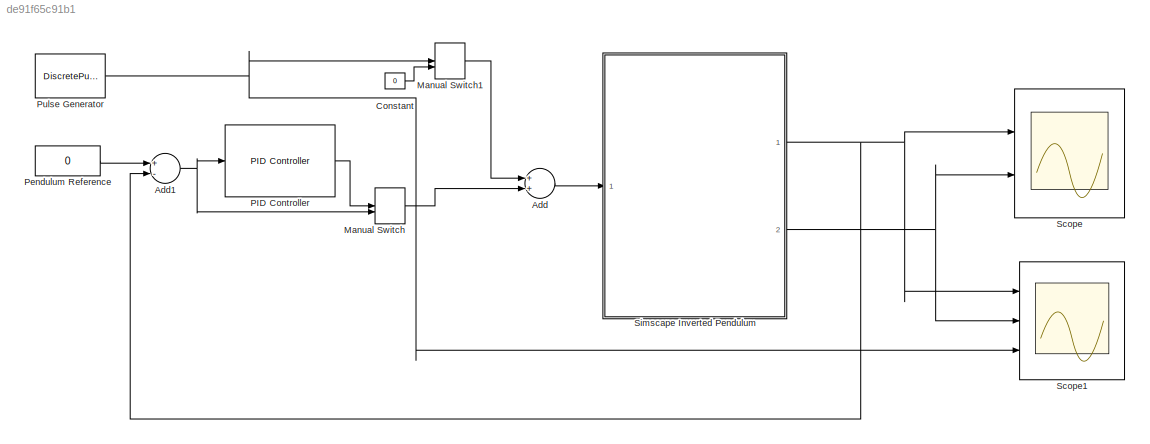
MODEL slx_de91f65c91b1
KIND model
CONFIG AbsTol = auto
CONFIG EnableMultiTasking = off
CONFIG FixedStep = auto
CONFIG MaxStep = auto
CONFIG MinStep = auto
CONFIG RelTol = 1e-3
CONFIG SampleTimeConstraint = Unconstrained
CONFIG Solver = ode45
CONFIG SolverName = ode45
CONFIG StartTime = 0.0
CONFIG StopTime = 10
BLOCK [Sum] Add
  InputSameDT = off
  OutDataTypeStr = Inherit: Inherit via internal rule
  Ports = [2, 1]
  SaturateOnIntegerOverflow = off
BLOCK [Sum] Add1
  InputSameDT = off
  Inputs = +-
  OutDataTypeStr = Inherit: Inherit via internal rule
  Ports = [2, 1]
  SaturateOnIntegerOverflow = off
BLOCK [Constant] Constant
  Value = 0
BLOCK [ManualSwitch] Manual Switch
BLOCK [ManualSwitch] Manual Switch1
BLOCK [Reference] PID Controller  REF=simulink/Continuous/PID Controller
  Ports = [1, 1]
  SourceBlock = simulink/Continuous/PID Controller
  SourceProductBaseCode = SL
  SourceProductName = Simulink
  SourceType = PID 1dof
BLOCK [Constant] Pendulum Reference
  Value = 0
BLOCK [DiscretePulseGenerator] Pulse Generator
  Amplitude = 0.001
  Period = 5
  Ports = [0, 1]
  PulseType = Time based
  PulseWidth = 5
BLOCK [Scope] Scope
  Floating = off
  NumInputPorts = 2
  Ports = [2]
  ScopeSpecificationString = Simulink.scopes.TimeScopeBlockCfg('CurrentConfiguration', extmgr.ConfigurationSet(extmgr.Configuration('Core','General UI',true),extmgr.Configuration('Core','Source UI',true),extmgr.Configuration('Sources','WiredSimulink',true),extmgr.Configuration('Visuals','Time Domain',true,'SerializedDisplays',{struct('MinYLimReal','-0.000049','MaxYLimReal','0.00003','YLabelReal','','MinYLimMag','0.000000','Ma...<+1396ch>
BLOCK [Scope] Scope1
  Floating = off
  NumInputPorts = 3
  Ports = [3]
  ScopeSpecificationString = Simulink.scopes.TimeScopeBlockCfg('CurrentConfiguration', extmgr.ConfigurationSet(extmgr.Configuration('Core','General UI',true),extmgr.Configuration('Core','Source UI',true),extmgr.Configuration('Sources','WiredSimulink',true,'DataLoggingVariableName','ScopeData1'),extmgr.Configuration('Visuals','Time Domain',true,'SerializedDisplays',{struct('MinYLimReal','-1.00000','MaxYLimReal','1.00000','YLab...<+2862ch>
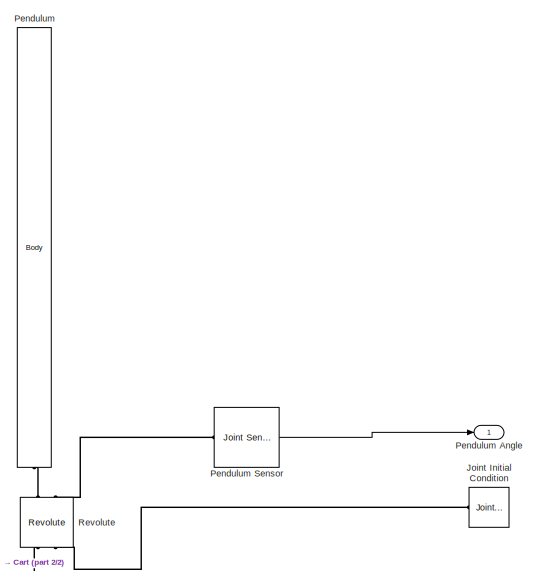
[diagram: Simscape Inverted Pendulum - part 1/2, top right region]
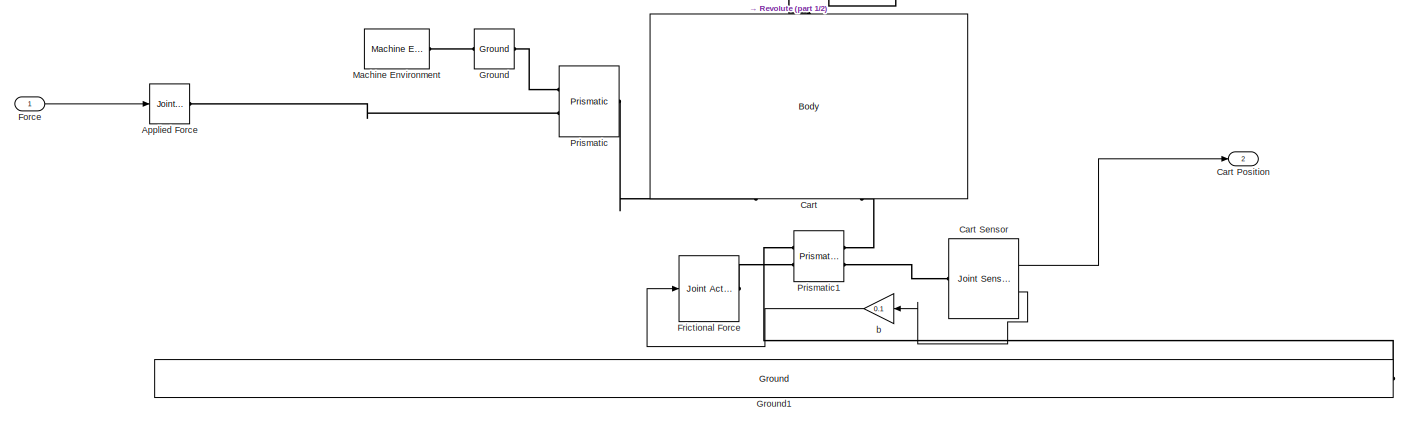
[diagram: Simscape Inverted Pendulum - part 2/2, full width, bottom band]
BLOCK [SubSystem] Simscape Inverted Pendulum
  Ports = [1, 2]
  RequestExecContextInheritance = off
BLOCK [Reference] Simscape Inverted Pendulum/ Pendulum Sensor  REF=mblibv1/Sensors & 
Actuators/Joint Sensor
  Ports = [0, 1, 0, 0, 0, 1]
  SourceBlock = mblibv1/Sensors & \nActuators/Joint Sensor
  SourceProductBaseCode = MS
  SourceProductName = Simscape Multibody
  SourceType = Joint Sensor
BLOCK [Reference] Simscape Inverted Pendulum/Applied Force  REF=mblibv1/Sensors & 
Actuators/Joint Actuator
  Ports = [1, 0, 0, 0, 0, 0, 1]
  SourceBlock = mblibv1/Sensors & \nActuators/Joint Actuator
  SourceProductBaseCode = MS
  SourceProductName = Simscape Multibody
  SourceType = Joint Actuator
BLOCK [Reference] Simscape Inverted Pendulum/Cart  REF=mblibv1/Bodies/Body
  Ports = [0, 0, 0, 0, 0, 2, 1]
  SourceBlock = mblibv1/Bodies/Body
  SourceProductBaseCode = MS
  SourceProductName = Simscape Multibody
  SourceType = Body
BLOCK [Outport] Simscape Inverted Pendulum/Cart Position
  IconDisplay = Port number
  Port = 2
BLOCK [Reference] Simscape Inverted Pendulum/Cart Sensor  REF=mblibv1/Sensors & 
Actuators/Joint Sensor
  Ports = [0, 2, 0, 0, 0, 1]
  SourceBlock = mblibv1/Sensors & \nActuators/Joint Sensor
  SourceProductBaseCode = MS
  SourceProductName = Simscape Multibody
  SourceType = Joint Sensor
BLOCK [Inport] Simscape Inverted Pendulum/Force
  IconDisplay = Port number
BLOCK [Reference] Simscape Inverted Pendulum/Frictional Force  REF=mblibv1/Sensors & 
Actuators/Joint Actuator
  Ports = [1, 0, 0, 0, 0, 0, 1]
  SourceBlock = mblibv1/Sensors & \nActuators/Joint Actuator
  SourceProductBaseCode = MS
  SourceProductName = Simscape Multibody
  SourceType = Joint Actuator
BLOCK [Reference] Simscape Inverted Pendulum/Ground  REF=mblibv1/Bodies/Ground
  Ports = [0, 0, 0, 0, 0, 1, 1]
  SourceBlock = mblibv1/Bodies/Ground
  SourceProductBaseCode = MS
  SourceProductName = Simscape Multibody
  SourceType = Ground
  UserDataPersistent = on
BLOCK [Reference] Simscape Inverted Pendulum/Ground1  REF=mblibv1/Bodies/Ground
  Ports = [0, 0, 0, 0, 0, 0, 1]
  SourceBlock = mblibv1/Bodies/Ground
  SourceProductBaseCode = MS
  SourceProductName = Simscape Multibody
  SourceType = Ground
  UserDataPersistent = on
BLOCK [Reference] Simscape Inverted Pendulum/Joint Initial Condition  REF=mblibv1/Sensors & 
Actuators/Joint Initial Condition
  Ports = [0, 0, 0, 0, 0, 0, 1]
  SourceBlock = mblibv1/Sensors & \nActuators/Joint Initial Condition
  SourceProductBaseCode = MS
  SourceProductName = Simscape Multibody
  SourceType = Joint Initial Condition
BLOCK [Reference] Simscape Inverted Pendulum/Machine Environment  REF=mblibv1/Bodies/Machine
Environment
  Ports = [0, 0, 0, 0, 0, 0, 1]
  SourceBlock = mblibv1/Bodies/Machine\nEnvironment
  SourceProductBaseCode = MS
  SourceProductName = Simscape Multibody
  SourceType = Machine Environment
BLOCK [Reference] Simscape Inverted Pendulum/Pendulum  REF=mblibv1/Bodies/Body
  Ports = [0, 0, 0, 0, 0, 1]
  SourceBlock = mblibv1/Bodies/Body
  SourceProductBaseCode = MS
  SourceProductName = Simscape Multibody
  SourceType = Body
BLOCK [Outport] Simscape Inverted Pendulum/Pendulum Angle
  IconDisplay = Port number
BLOCK [Reference] Simscape Inverted Pendulum/Prismatic  REF=mblibv1/Joints/Prismatic
  Ports = [0, 0, 0, 0, 0, 2, 1]
  SourceBlock = mblibv1/Joints/Prismatic
  SourceProductBaseCode = MS
  SourceProductName = Simscape Multibody
  SourceType = Prismatic
BLOCK [Reference] Simscape Inverted Pendulum/Prismatic1  REF=mblibv1/Joints/Prismatic
  Ports = [0, 0, 0, 0, 0, 2, 2]
  SourceBlock = mblibv1/Joints/Prismatic
  SourceProductBaseCode = MS
  SourceProductName = Simscape Multibody
  SourceType = Prismatic
BLOCK [Reference] Simscape Inverted Pendulum/Revolute  REF=mblibv1/Joints/Revolute
  Ports = [0, 0, 0, 0, 0, 2, 2]
  SourceBlock = mblibv1/Joints/Revolute
  SourceProductBaseCode = MS
  SourceProductName = Simscape Multibody
  SourceType = Revolute
BLOCK [Gain] Simscape Inverted Pendulum/b
  Gain = 0.1
  OutDataTypeStr = Inherit: Inherit via internal rule
  ParamDataTypeStr = Inherit: Inherit via internal rule
  SaturateOnIntegerOverflow = off
NET Add1:1 -> Manual Switch:2, PID Controller:1
LINE Add:1 -> Simscape Inverted Pendulum:1
LINE Constant:1 -> Manual Switch1:2
LINE Manual Switch1:1 -> Add:1
LINE Manual Switch:1 -> Add:2
LINE PID Controller:1 -> Manual Switch:1
LINE Pendulum Reference:1 -> Add1:1
NET Pulse Generator:1 -> Manual Switch1:1, Scope1:3
LINE Simscape Inverted Pendulum/ Pendulum Sensor:1 -> Simscape Inverted Pendulum/Pendulum Angle:1
LINE Simscape Inverted Pendulum/Cart Sensor:1 -> Simscape Inverted Pendulum/Cart Position:1
LINE Simscape Inverted Pendulum/Cart Sensor:2 -> Simscape Inverted Pendulum/b:1
LINE Simscape Inverted Pendulum/Force:1 -> Simscape Inverted Pendulum/Applied Force:1
LINE Simscape Inverted Pendulum/b:1 -> Simscape Inverted Pendulum/Frictional Force:1
NET Simscape Inverted Pendulum:1 -> Add1:2, Scope1:1, Scope:1
NET Simscape Inverted Pendulum:2 -> Scope1:2, Scope:2
PLINE Simscape Inverted Pendulum/ Pendulum Sensor:LConn1 -- Simscape Inverted Pendulum/Revolute:RConn2
PLINE Simscape Inverted Pendulum/Applied Force:RConn1 -- Simscape Inverted Pendulum/Prismatic:LConn2
PLINE Simscape Inverted Pendulum/Cart Sensor:LConn1 -- Simscape Inverted Pendulum/Prismatic1:RConn2
PLINE Simscape Inverted Pendulum/Cart:LConn1 -- Simscape Inverted Pendulum/Prismatic:RConn1
PLINE Simscape Inverted Pendulum/Cart:LConn2 -- Simscape Inverted Pendulum/Prismatic1:RConn1
PLINE Simscape Inverted Pendulum/Cart:RConn1 -- Simscape Inverted Pendulum/Revolute:LConn1
PLINE Simscape Inverted Pendulum/Frictional Force:RConn1 -- Simscape Inverted Pendulum/Prismatic1:LConn2
PLINE Simscape Inverted Pendulum/Ground1:RConn1 -- Simscape Inverted Pendulum/Prismatic1:LConn1
PLINE Simscape Inverted Pendulum/Ground:LConn1 -- Simscape Inverted Pendulum/Machine Environment:RConn1
PLINE Simscape Inverted Pendulum/Ground:RConn1 -- Simscape Inverted Pendulum/Prismatic:LConn1
PLINE Simscape Inverted Pendulum/Joint Initial Condition:RConn1 -- Simscape Inverted Pendulum/Revolute:LConn2
PLINE Simscape Inverted Pendulum/Pendulum:LConn1 -- Simscape Inverted Pendulum/Revolute:RConn1
note: NET lines group one-source signal fan-out (src -> all destinations, sorted); 1:1 wires keep LINE
